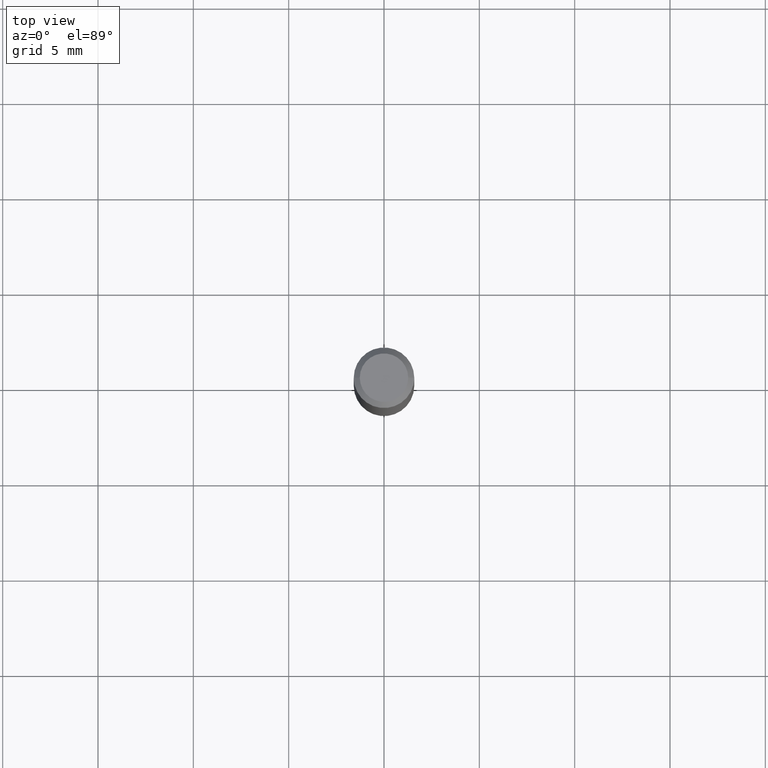
[diagram: clean part render]
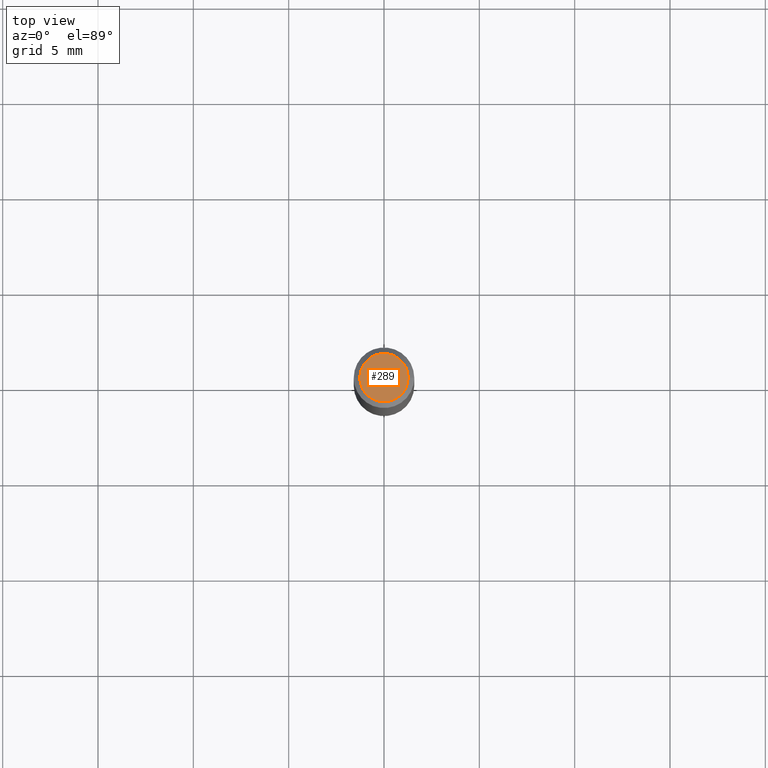
[diagram: same view with one face highlighted and labeled with its STEP entity id]
A machine part, top view. The second image highlights one B-rep face of the part: STEP entity #289.
In plain terms, the highlighted planar face has unit normal (0, -0, -1).
Its self-contained STEP definition (entity closure, byte-faithful):
#28 = EDGE_CURVE ( 'NONE', #363, #468, #147, .T. ) ;
#34 = AXIS2_PLACEMENT_3D ( 'NONE', #277, #386, #193 ) ;
#80 = ORIENTED_EDGE ( 'NONE', *, *, #28, .T. ) ;
#95 = CARTESIAN_POINT ( 'NONE',  ( 1.946643104841063088E-47, -2.779290439833033990E-33, -7.960204194457798443E-19 ) ) ;
#147 = CIRCLE ( 'NONE', #34, 0.04999999999999999584 ) ;
#166 = EDGE_LOOP ( 'NONE', ( #80, #330 ) ) ;
#171 = CIRCLE ( 'NONE', #445, 0.04999999999999999584 ) ;
#193 = DIRECTION ( 'NONE',  ( 1.000000000000000000, -6.982962677686265922E-15, 4.875957971899673662E-29 ) ) ;
#211 = CARTESIAN_POINT ( 'NONE',  ( 3.893286209682126177E-47, -5.558580879666067980E-33, -1.592040838891559689E-18 ) ) ;
#234 = CARTESIAN_POINT ( 'NONE',  ( 0.04999999999999999584, -4.077247707424184705E-16, -1.592040838888913461E-18 ) ) ;
#244 = DIRECTION ( 'NONE',  ( 2.438088387897960049E-29, -3.491481338843145188E-15, -1.000000000000000000 ) ) ;
#247 = EDGE_CURVE ( 'NONE', #468, #363, #171, .T. ) ;
#277 = CARTESIAN_POINT ( 'NONE',  ( 3.893286209682126177E-47, -5.558580879666067980E-33, -1.592040838891559689E-18 ) ) ;
#289 = ADVANCED_FACE ( 'NONE', ( #357 ), #434, .F. ) ;
#301 = CARTESIAN_POINT ( 'NONE',  ( -0.04999999999999999584, 3.709698922520826725E-16, -1.592040838894077649E-18 ) ) ;
#323 = DIRECTION ( 'NONE',  ( 1.000000000000000000, -6.982962677686265922E-15, 4.875957971899673662E-29 ) ) ;
#330 = ORIENTED_EDGE ( 'NONE', *, *, #247, .T. ) ;
#357 = FACE_OUTER_BOUND ( 'NONE', #166, .T. ) ;
#363 = VERTEX_POINT ( 'NONE', #301 ) ;
#386 = DIRECTION ( 'NONE',  ( -2.445468806185136597E-29, 3.491481338843145583E-15, 1.000000000000000000 ) ) ;
#396 = DIRECTION ( 'NONE',  ( -1.000000000000000000, 6.982962677686265922E-15, -4.876176775795935793E-29 ) ) ;
#431 = DIRECTION ( 'NONE',  ( -2.445468806185136597E-29, 3.491481338843145583E-15, 1.000000000000000000 ) ) ;
#434 = PLANE ( 'NONE',  #487 ) ;
#445 = AXIS2_PLACEMENT_3D ( 'NONE', #211, #431, #323 ) ;
#468 = VERTEX_POINT ( 'NONE', #234 ) ;
#487 = AXIS2_PLACEMENT_3D ( 'NONE', #95, #244, #396 ) ;